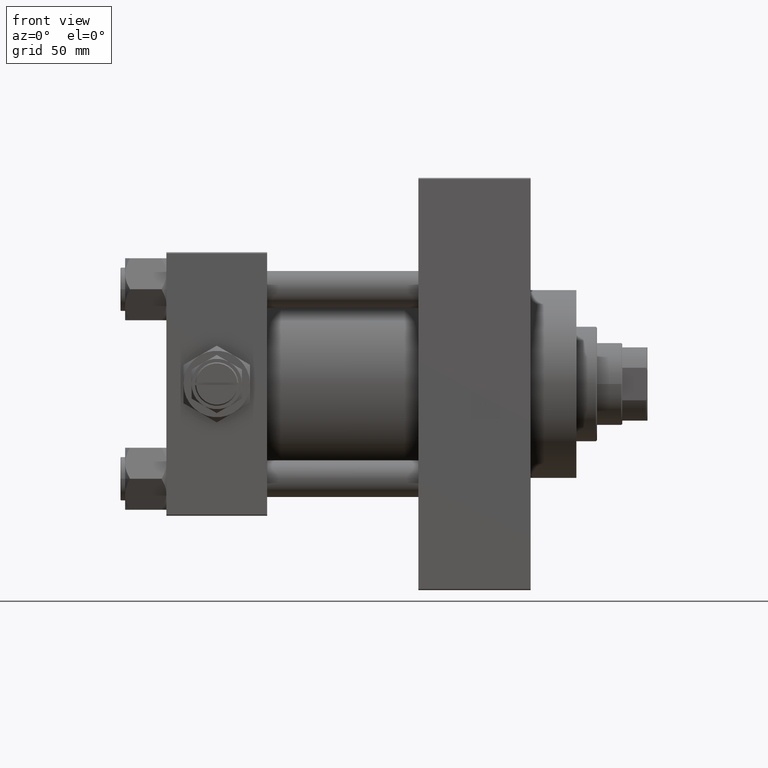
[diagram: clean part render]
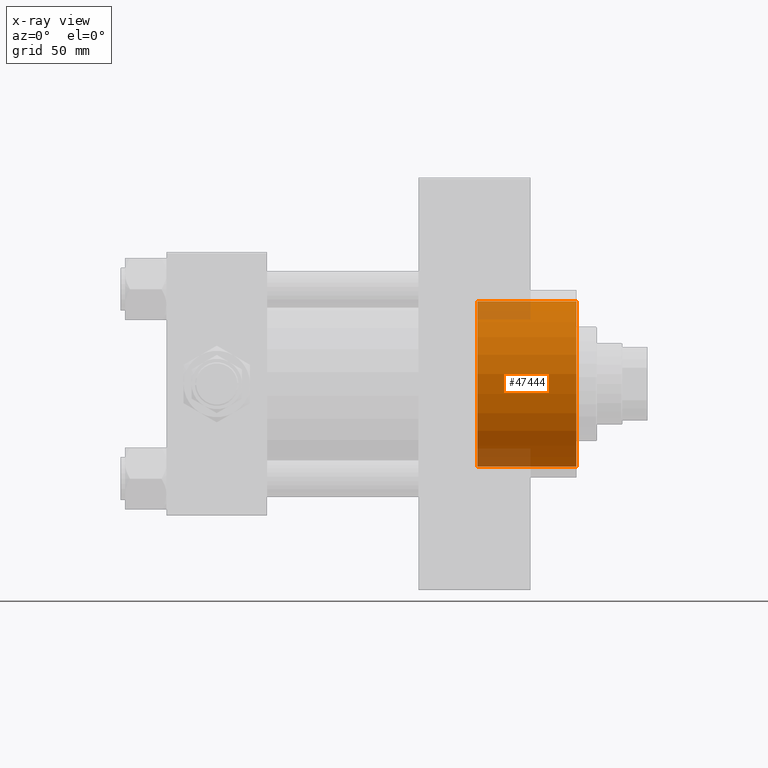
[diagram: x-ray — body ghosted, one internal face saturated and labeled with its STEP entity id]
A machine part, front view, then the same camera in x-ray: the body is ghosted and one INTERNAL B-rep face — a face not visible from any outside direction — is saturated and labeled: STEP entity #47444.
In plain terms, the highlighted cylindrical surface (partial cylindrical patch) has radius 36 mm, axis along (1, 0, 0).
Its self-contained STEP definition (entity closure, byte-faithful):
#34 = LINE ( 'NONE', #34348, #47242 ) ;
#2238 = DIRECTION ( 'NONE',  ( 0.000000000000000000, 0.000000000000000000, -1.000000000000000000 ) ) ;
#4093 = CIRCLE ( 'NONE', #37482, 36.00000000000000000 ) ;
#5232 = FACE_OUTER_BOUND ( 'NONE', #12538, .T. ) ;
#5829 = EDGE_CURVE ( 'NONE', #48779, #48719, #6949, .T. ) ;
#6949 = LINE ( 'NONE', #45015, #37790 ) ;
#8890 = CARTESIAN_POINT ( 'NONE',  ( 179.0000000000000000, 0.000000000000000000, -36.00000000000000000 ) ) ;
#12538 = EDGE_LOOP ( 'NONE', ( #22188, #32642, #12733, #23807 ) ) ;
#12697 = CARTESIAN_POINT ( 'NONE',  ( 135.7400000000000091, 4.408728476930470856E-15, 36.00000000000000000 ) ) ;
#12733 = ORIENTED_EDGE ( 'NONE', *, *, #36681, .T. ) ;
#12735 = CARTESIAN_POINT ( 'NONE',  ( 179.0000000000000000, 4.408728476930470856E-15, 36.00000000000000000 ) ) ;
#13124 = CARTESIAN_POINT ( 'NONE',  ( 135.7400000000000091, 0.000000000000000000, -36.00000000000000000 ) ) ;
#15505 = DIRECTION ( 'NONE',  ( 1.000000000000000000, 0.000000000000000000, 0.000000000000000000 ) ) ;
#21134 = CARTESIAN_POINT ( 'NONE',  ( 135.7400000000000091, 0.000000000000000000, 0.000000000000000000 ) ) ;
#22169 = DIRECTION ( 'NONE',  ( 1.000000000000000000, -0.000000000000000000, -0.000000000000000000 ) ) ;
#22188 = ORIENTED_EDGE ( 'NONE', *, *, #27909, .F. ) ;
#23700 = AXIS2_PLACEMENT_3D ( 'NONE', #21134, #36318, #2238 ) ;
#23807 = ORIENTED_EDGE ( 'NONE', *, *, #5829, .F. ) ;
#23881 = CYLINDRICAL_SURFACE ( 'NONE', #32139, 36.00000000000000000 ) ;
#23889 = DIRECTION ( 'NONE',  ( 0.000000000000000000, 0.000000000000000000, -1.000000000000000000 ) ) ;
#27909 = EDGE_CURVE ( 'NONE', #36638, #48779, #47525, .T. ) ;
#30236 = VERTEX_POINT ( 'NONE', #12735 ) ;
#32139 = AXIS2_PLACEMENT_3D ( 'NONE', #35342, #46780, #35586 ) ;
#32642 = ORIENTED_EDGE ( 'NONE', *, *, #47291, .T. ) ;
#34348 = CARTESIAN_POINT ( 'NONE',  ( 135.7400000000000091, 4.408728476930470856E-15, 36.00000000000000000 ) ) ;
#35342 = CARTESIAN_POINT ( 'NONE',  ( 135.7400000000000091, 0.000000000000000000, 0.000000000000000000 ) ) ;
#35586 = DIRECTION ( 'NONE',  ( 0.000000000000000000, 0.000000000000000000, -1.000000000000000000 ) ) ;
#35832 = CARTESIAN_POINT ( 'NONE',  ( 179.0000000000000000, 0.000000000000000000, 0.000000000000000000 ) ) ;
#36318 = DIRECTION ( 'NONE',  ( 1.000000000000000000, 0.000000000000000000, 0.000000000000000000 ) ) ;
#36638 = VERTEX_POINT ( 'NONE', #12697 ) ;
#36681 = EDGE_CURVE ( 'NONE', #30236, #48719, #4093, .T. ) ;
#37308 = DIRECTION ( 'NONE',  ( 1.000000000000000000, -0.000000000000000000, -0.000000000000000000 ) ) ;
#37482 = AXIS2_PLACEMENT_3D ( 'NONE', #35832, #15505, #23889 ) ;
#37790 = VECTOR ( 'NONE', #37308, 1000.000000000000000 ) ;
#45015 = CARTESIAN_POINT ( 'NONE',  ( 135.7400000000000091, 0.000000000000000000, -36.00000000000000000 ) ) ;
#46780 = DIRECTION ( 'NONE',  ( 1.000000000000000000, -0.000000000000000000, -0.000000000000000000 ) ) ;
#47242 = VECTOR ( 'NONE', #22169, 1000.000000000000000 ) ;
#47291 = EDGE_CURVE ( 'NONE', #36638, #30236, #34, .T. ) ;
#47444 = ADVANCED_FACE ( 'NONE', ( #5232 ), #23881, .F. ) ;
#47525 = CIRCLE ( 'NONE', #23700, 36.00000000000000000 ) ;
#48719 = VERTEX_POINT ( 'NONE', #8890 ) ;
#48779 = VERTEX_POINT ( 'NONE', #13124 ) ;